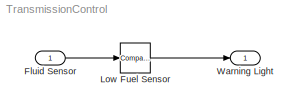
MODEL TransmissionControl
KIND model
BLOCK [Inport] Fluid Sensor
  IconDisplay = Port number
  OutDataTypeStr = single
  SID = 1
BLOCK [Reference] Low Fuel Sensor  REF=simulink/Logic and Bit\nOperations/Compare\nTo Constant
  OutDataTypeStr = boolean
  Ports = [1, 1]
  SID = 2
  SourceBlock = simulink/Logic and Bit\nOperations/Compare\nTo Constant
  SourceType = Compare To Constant
  ZeroCross = on
  const = 3.0
  relop = <=
BLOCK [Outport] Warning Light
  IconDisplay = Port number
  SID = 3
LINE Fluid Sensor:1 -> Low Fuel Sensor:1
LINE Low Fuel Sensor:1 -> Warning Light:1
